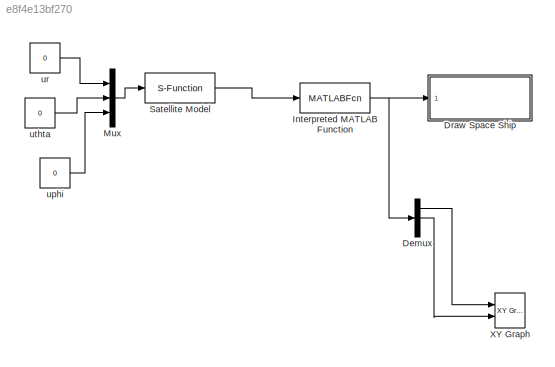
MODEL slx_e8f4e13bf270
KIND model
BLOCK [Demux] Demux
  DisplayOption = bar
  Outputs = 3
  Ports = [1, 3]
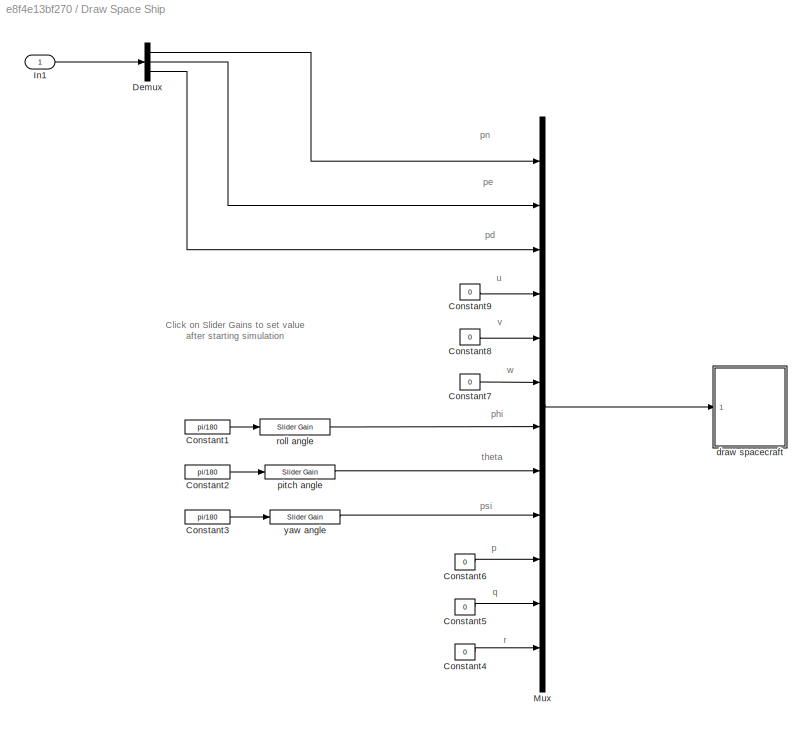
BLOCK [SubSystem] Draw Space Ship
  FunctionWithSeparateData = off
  MaskHideContents = off
  MinAlgLoopOccurrences = off
  Opaque = off
  Ports = [1]
  PropExecContextOutsideSubsystem = off
  RTWSystemCode = Auto
  RequestExecContextInheritance = off
BLOCK [Constant] Draw Space Ship/Constant1
  Value = pi/180
BLOCK [Constant] Draw Space Ship/Constant2
  Value = pi/180
BLOCK [Constant] Draw Space Ship/Constant3
  Value = pi/180
BLOCK [Constant] Draw Space Ship/Constant4
  Value = 0
BLOCK [Constant] Draw Space Ship/Constant5
  Value = 0
BLOCK [Constant] Draw Space Ship/Constant6
  Value = 0
BLOCK [Constant] Draw Space Ship/Constant7
  Value = 0
BLOCK [Constant] Draw Space Ship/Constant8
  Value = 0
BLOCK [Constant] Draw Space Ship/Constant9
  Value = 0
BLOCK [Demux] Draw Space Ship/Demux
  DisplayOption = bar
  Outputs = 3
  Ports = [1, 3]
BLOCK [Inport] Draw Space Ship/In1
  IconDisplay = Port number
BLOCK [Mux] Draw Space Ship/Mux
  DisplayOption = bar
  Inputs = 12
  Ports = [12, 1]
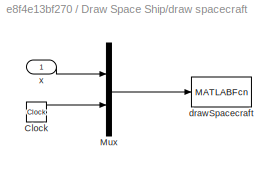
BLOCK [SubSystem] Draw Space Ship/draw spacecraft
  FunctionWithSeparateData = off
  MaskHideContents = off
  MinAlgLoopOccurrences = off
  Opaque = off
  Ports = [1]
  PropExecContextOutsideSubsystem = off
  RTWSystemCode = Auto
  RequestExecContextInheritance = off
BLOCK [Clock] Draw Space Ship/draw spacecraft/Clock
BLOCK [Mux] Draw Space Ship/draw spacecraft/Mux
  DisplayOption = bar
  Inputs = 2
  Ports = [2, 1]
BLOCK [MATLABFcn] Draw Space Ship/draw spacecraft/drawSpacecraft
  MATLABFcn = drawSpacecraft(u,pts)
  OutputDimensions = 0
  Ports = [1]
  SampleTime = 0.1
BLOCK [Inport] Draw Space Ship/draw spacecraft/x
  IconDisplay = Port number
BLOCK [Reference] Draw Space Ship/pitch angle  REF=simulink/Math
Operations/Slider
Gain
  Ports = [1, 1]
  SourceBlock = simulink/Math\nOperations/Slider\nGain
  SourceType = Slider Gain
  gain = 0
  high = 180
  low = -180
BLOCK [Reference] Draw Space Ship/roll angle  REF=simulink/Math
Operations/Slider
Gain
  Ports = [1, 1]
  SourceBlock = simulink/Math\nOperations/Slider\nGain
  SourceType = Slider Gain
  gain = 0
  high = 180
  low = -180
BLOCK [Reference] Draw Space Ship/yaw angle   REF=simulink/Math
Operations/Slider
Gain
  Ports = [1, 1]
  SourceBlock = simulink/Math\nOperations/Slider\nGain
  SourceType = Slider Gain
  gain = 0
  high = 180
  low = -180
BLOCK [MATLABFcn] Interpreted MATLAB Function
  MATLABFcn = polar2cart(u)
  OutputDimensions = 3
  Ports = [1, 1]
BLOCK [Mux] Mux
  DisplayOption = bar
  Inputs = 3
  Ports = [3, 1]
BLOCK [S-Function] Satellite Model
  EnableBusSupport = off
  FunctionName = satelliteModel
  Parameters = P
  Ports = [1, 1]
BLOCK [Reference] XY Graph  REF=simulink/Sinks/XY Graph
  Ports = [2]
  SourceBlock = simulink/Sinks/XY Graph
  SourceType = XY scope.
  st = -1
  xmax = 7878
  xmin = - 7878
  ymax = 7878
  ymin = - 7878
BLOCK [Constant] uphi
  Value = 0
BLOCK [Constant] ur
  Value = 0
BLOCK [Constant] uthta
  Value = 0
ANNOTATION Draw Space Ship: Click on Slider Gains to set value after starting simulation
ANNOTATION Draw Space Ship: p
ANNOTATION Draw Space Ship: pd
ANNOTATION Draw Space Ship: pe
ANNOTATION Draw Space Ship: phi
ANNOTATION Draw Space Ship: pn
ANNOTATION Draw Space Ship: psi
ANNOTATION Draw Space Ship: q
ANNOTATION Draw Space Ship: r
ANNOTATION Draw Space Ship: theta
ANNOTATION Draw Space Ship: u
ANNOTATION Draw Space Ship: v
ANNOTATION Draw Space Ship: w
LINE Demux:1 -> XY Graph:1
LINE Demux:2 -> XY Graph:2
LINE Draw Space Ship/Constant1:1 -> Draw Space Ship/roll angle:1
LINE Draw Space Ship/Constant2:1 -> Draw Space Ship/pitch angle:1
LINE Draw Space Ship/Constant3:1 -> Draw Space Ship/yaw angle :1
LINE Draw Space Ship/Constant4:1 -> Draw Space Ship/Mux:12
LINE Draw Space Ship/Constant5:1 -> Draw Space Ship/Mux:11
LINE Draw Space Ship/Constant6:1 -> Draw Space Ship/Mux:10
LINE Draw Space Ship/Constant7:1 -> Draw Space Ship/Mux:6
LINE Draw Space Ship/Constant8:1 -> Draw Space Ship/Mux:5
LINE Draw Space Ship/Constant9:1 -> Draw Space Ship/Mux:4
LINE Draw Space Ship/Demux:1 -> Draw Space Ship/Mux:1
LINE Draw Space Ship/Demux:2 -> Draw Space Ship/Mux:2
LINE Draw Space Ship/Demux:3 -> Draw Space Ship/Mux:3
LINE Draw Space Ship/In1:1 -> Draw Space Ship/Demux:1
LINE Draw Space Ship/Mux:1 -> Draw Space Ship/draw spacecraft:1
LINE Draw Space Ship/draw spacecraft/Clock:1 -> Draw Space Ship/draw spacecraft/Mux:2
LINE Draw Space Ship/draw spacecraft/Mux:1 -> Draw Space Ship/draw spacecraft/drawSpacecraft:1
LINE Draw Space Ship/draw spacecraft/x:1 -> Draw Space Ship/draw spacecraft/Mux:1
LINE Draw Space Ship/pitch angle:1 -> Draw Space Ship/Mux:8
LINE Draw Space Ship/roll angle:1 -> Draw Space Ship/Mux:7
LINE Draw Space Ship/yaw angle :1 -> Draw Space Ship/Mux:9
NET Interpreted MATLAB Function:1 -> Demux:1, Draw Space Ship:1
LINE Mux:1 -> Satellite Model:1
LINE Satellite Model:1 -> Interpreted MATLAB Function:1
LINE uphi:1 -> Mux:3
LINE ur:1 -> Mux:1
LINE uthta:1 -> Mux:2
note: NET lines group one-source signal fan-out (src -> all destinations, sorted); 1:1 wires keep LINE
